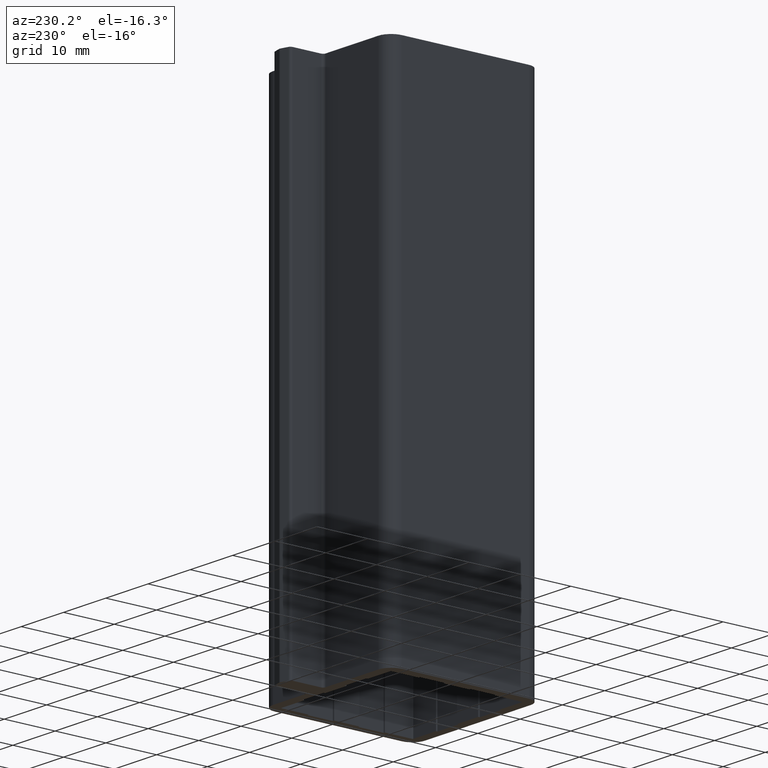
[diagram: clean part render]
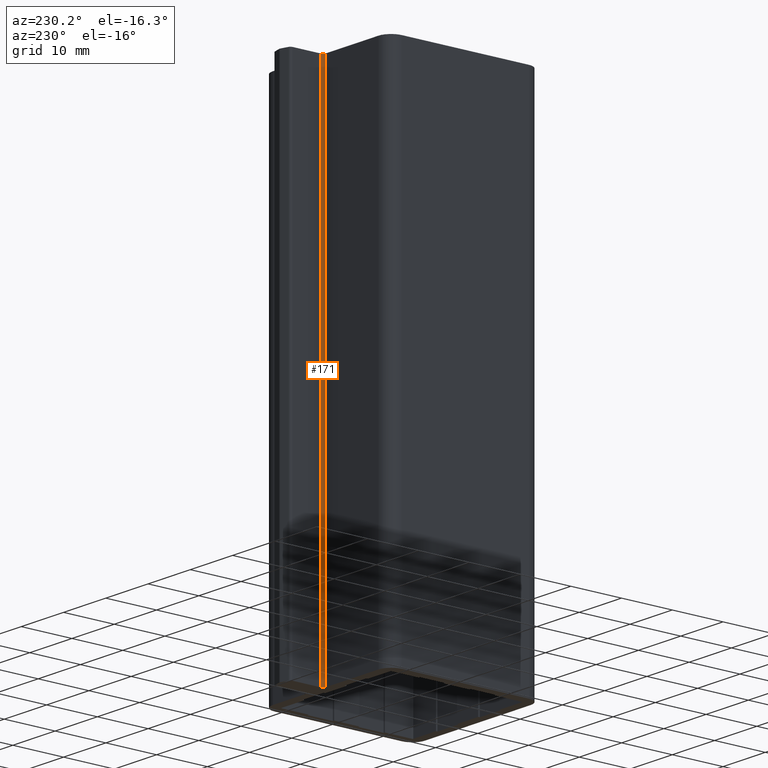
[diagram: same view with one face highlighted and labeled with its STEP entity id]
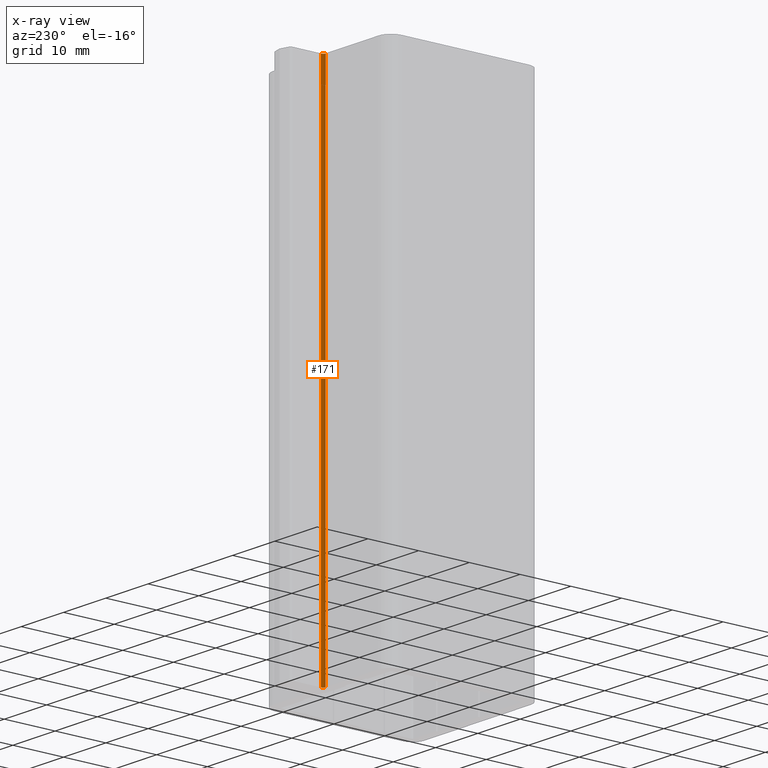
[diagram: x-ray of the same camera — body ghosted, the highlighted face saturated]
A machine part, auxiliary view. The second image highlights one B-rep face of the part: STEP entity #171.
The next image is the same camera in x-ray: the body ghosted, the highlighted face saturated — about 0% of this face is hidden behind the body in this view.
In plain terms, the highlighted cylindrical surface (edge-blend (fillet) strip) has radius 0.5 mm, axis along (0, 0, -1).
Its self-contained STEP definition (entity closure, byte-faithful):
#114=CARTESIAN_POINT('',(0.499999999984766,30.499999999969759,0.0));
#115=VERTEX_POINT('',#114);
#122=CARTESIAN_POINT('',(0.499999999984766,30.499999999969759,100.0));
#123=VERTEX_POINT('',#122);
#124=CARTESIAN_POINT('',(0.499999999984766,30.499999999969759,100.0));
#125=DIRECTION('',(0.0,0.0,-1.0));
#126=VECTOR('',#125,100.0);
#127=LINE('',#124,#126);
#128=EDGE_CURVE('',#123,#115,#127,.T.);
#139=CARTESIAN_POINT('',(-1.523404E-011,30.499999999969759,100.0));
#140=DIRECTION('',(0.0,0.0,-1.0));
#141=DIRECTION('',(1.0,0.0,0.0));
#142=AXIS2_PLACEMENT_3D('',#139,#140,#141);
#143=CYLINDRICAL_SURFACE('',#142,0.500000000000000);
#144=ORIENTED_EDGE('',*,*,#128,.T.);
#145=CARTESIAN_POINT('',(-1.523404E-011,29.999999999969759,0.0));
#146=VERTEX_POINT('',#145);
#147=CARTESIAN_POINT('',(-1.523404E-011,30.499999999969759,0.0));
#148=DIRECTION('',(0.0,0.0,-1.0));
#149=DIRECTION('',(1.0,0.0,0.0));
#150=AXIS2_PLACEMENT_3D('',#147,#148,#149);
#151=CIRCLE('',#150,0.500000000000000);
#152=EDGE_CURVE('',#115,#146,#151,.T.);
#153=ORIENTED_EDGE('',*,*,#152,.T.);
#154=CARTESIAN_POINT('',(-1.523404E-011,29.999999999969759,100.0));
#155=VERTEX_POINT('',#154);
#156=CARTESIAN_POINT('',(-1.523404E-011,29.999999999969759,100.0));
#157=DIRECTION('',(0.0,0.0,-1.0));
#158=VECTOR('',#157,100.0);
#159=LINE('',#156,#158);
#160=EDGE_CURVE('',#155,#146,#159,.T.);
#161=ORIENTED_EDGE('',*,*,#160,.F.);
#162=CARTESIAN_POINT('',(-1.523404E-011,30.499999999969759,100.0));
#163=DIRECTION('',(0.0,0.0,-1.0));
#164=DIRECTION('',(1.0,0.0,0.0));
#165=AXIS2_PLACEMENT_3D('',#162,#163,#164);
#166=CIRCLE('',#165,0.500000000000000);
#167=EDGE_CURVE('',#123,#155,#166,.T.);
#168=ORIENTED_EDGE('',*,*,#167,.F.);
#169=EDGE_LOOP('',(#144,#153,#161,#168));
#170=FACE_OUTER_BOUND('',#169,.T.);
#171=ADVANCED_FACE('',(#170),#143,.F.);